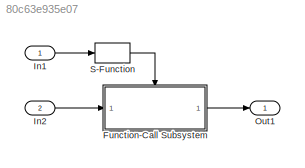
MODEL slx_80c63e935e07
KIND model
CONFIG AbsTol = auto
CONFIG EnableMultiTasking = off
CONFIG FixedStep = auto
CONFIG MaxStep = auto
CONFIG MinStep = auto
CONFIG RelTol = 1e-3
CONFIG SampleTimeConstraint = Unconstrained
CONFIG SolverName = FixedStepDiscrete
CONFIG StartTime = 0.0
CONFIG StopTime = 10.0
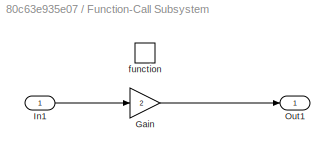
BLOCK [SubSystem] Function-Call Subsystem
  Ports = [1, 1, 0, 1]
  RTWFcnName = li
  RTWFcnNameOpts = User specified
  RequestExecContextInheritance = off
  TreatAsAtomicUnit = on
BLOCK [Gain] Function-Call Subsystem/Gain
  Gain = 2
BLOCK [Inport] Function-Call Subsystem/In1
BLOCK [Outport] Function-Call Subsystem/Out1
BLOCK [TriggerPort] Function-Call Subsystem/function
  Ports = []
  StatesWhenEnabling = held
  TriggerType = function-call
  VariantControl = (inherit)
BLOCK [Inport] In1
BLOCK [Inport] In2
  Port = 2
BLOCK [Outport] Out1
BLOCK [S-Function] S-Function
  EnableBusSupport = off
  FunctionName = fcncall
  Ports = [1, 1]
  SFcnIsStateOwnerBlock = off
  SFunctionDeploymentMode = off
LINE Function-Call Subsystem/Gain:1 -> Function-Call Subsystem/Out1:1
LINE Function-Call Subsystem/In1:1 -> Function-Call Subsystem/Gain:1
LINE Function-Call Subsystem:1 -> Out1:1
LINE In1:1 -> S-Function:1
LINE In2:1 -> Function-Call Subsystem:1
LINE S-Function:1 -> Function-Call Subsystem:trigger
